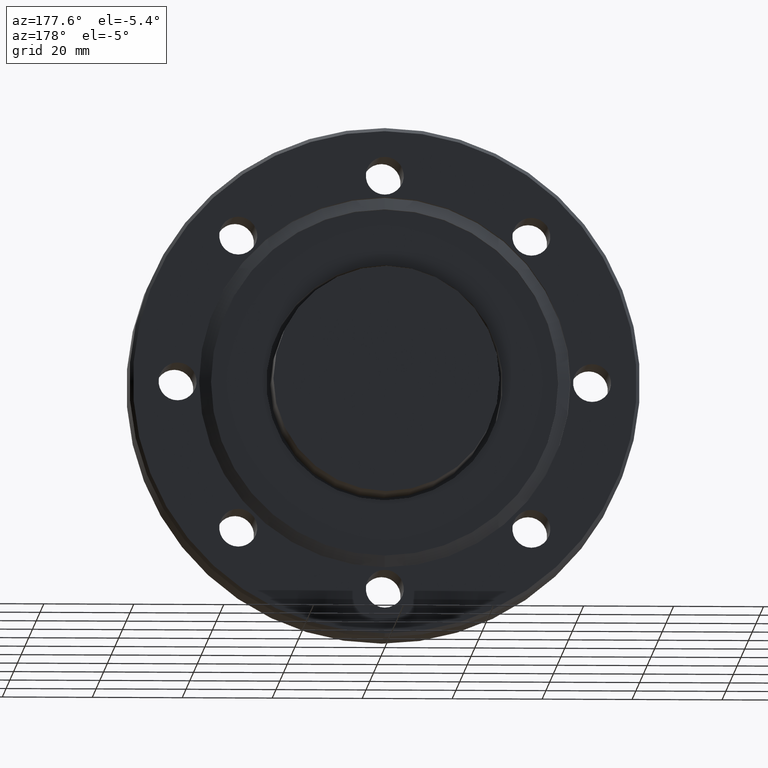
[diagram: clean part render]
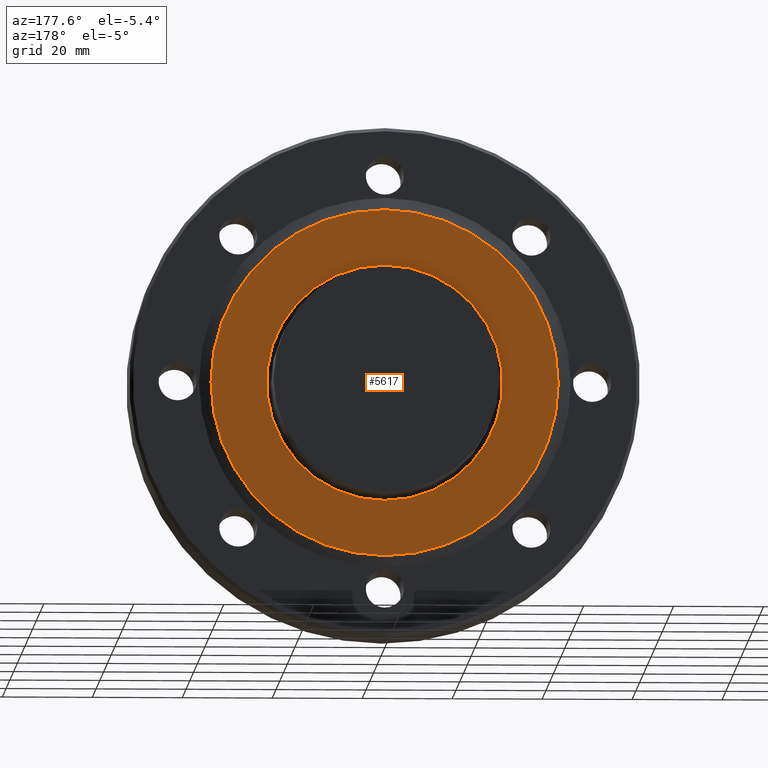
[diagram: same view with one face highlighted and labeled with its STEP entity id]
A machine part, auxiliary view. The second image highlights one B-rep face of the part: STEP entity #5617.
In plain terms, the highlighted planar face has unit normal (0, -1, 0).
Its self-contained STEP definition (entity closure, byte-faithful):
#47 = CARTESIAN_POINT ( 'NONE',  ( -1.520000000000001572, -0.05099999999999994815, 0.0000000000000000000 ) ) ;
#1354 = AXIS2_PLACEMENT_3D ( 'NONE', #4603, #4520, #8682 ) ;
#1559 = FACE_OUTER_BOUND ( 'NONE', #1655, .T. ) ;
#1655 = EDGE_LOOP ( 'NONE', ( #6616, #6618 ) ) ;
#2469 = AXIS2_PLACEMENT_3D ( 'NONE', #6274, #2867, #4859 ) ;
#2579 = VERTEX_POINT ( 'NONE', #8360 ) ;
#2614 = EDGE_CURVE ( 'NONE', #2579, #6384, #5538, .T. ) ;
#2695 = CARTESIAN_POINT ( 'NONE',  ( 0.0000000000000000000, -0.05099999999999991346, 0.0000000000000000000 ) ) ;
#2857 = AXIS2_PLACEMENT_3D ( 'NONE', #47, #4907, #4876 ) ;
#2867 = DIRECTION ( 'NONE',  ( 0.0000000000000000000, -1.000000000000000000, 0.0000000000000000000 ) ) ;
#2931 = DIRECTION ( 'NONE',  ( 0.0000000000000000000, -1.000000000000000000, 0.0000000000000000000 ) ) ;
#2967 = DIRECTION ( 'NONE',  ( 0.0000000000000000000, 0.0000000000000000000, 1.000000000000000000 ) ) ;
#3163 = CIRCLE ( 'NONE', #1354, 1.520000000000001794 ) ;
#3421 = ORIENTED_EDGE ( 'NONE', *, *, #8290, .T. ) ;
#3824 = CIRCLE ( 'NONE', #6853, 1.520000000000001794 ) ;
#3916 = CARTESIAN_POINT ( 'NONE',  ( -1.861463134703977190E-16, -0.05099999999999991346, -1.520000000000000240 ) ) ;
#4520 = DIRECTION ( 'NONE',  ( 0.0000000000000000000, -1.000000000000000000, 0.0000000000000000000 ) ) ;
#4532 = VERTEX_POINT ( 'NONE', #8057 ) ;
#4556 = CIRCLE ( 'NONE', #2469, 1.033500000000001195 ) ;
#4603 = CARTESIAN_POINT ( 'NONE',  ( 0.0000000000000000000, -0.05099999999999991346, 0.0000000000000000000 ) ) ;
#4814 = DIRECTION ( 'NONE',  ( 0.0000000000000000000, -1.000000000000000000, 0.0000000000000000000 ) ) ;
#4859 = DIRECTION ( 'NONE',  ( 0.0000000000000000000, 0.0000000000000000000, 1.000000000000000000 ) ) ;
#4876 = DIRECTION ( 'NONE',  ( 0.0000000000000000000, 0.0000000000000000000, 1.000000000000000000 ) ) ;
#4907 = DIRECTION ( 'NONE',  ( 0.0000000000000000000, -1.000000000000000000, 0.0000000000000000000 ) ) ;
#5538 = CIRCLE ( 'NONE', #5685, 1.033500000000001195 ) ;
#5617 = ADVANCED_FACE ( 'NONE', ( #1559, #7291 ), #6257, .F. ) ;
#5623 = EDGE_CURVE ( 'NONE', #4532, #5990, #3824, .T. ) ;
#5685 = AXIS2_PLACEMENT_3D ( 'NONE', #8494, #2931, #2967 ) ;
#5970 = CARTESIAN_POINT ( 'NONE',  ( -1.265672466918789880E-16, -0.05099999999999998285, -1.033500000000000085 ) ) ;
#5990 = VERTEX_POINT ( 'NONE', #3916 ) ;
#6257 = PLANE ( 'NONE',  #2857 ) ;
#6274 = CARTESIAN_POINT ( 'NONE',  ( 0.0000000000000000000, -0.05099999999999998285, 0.0000000000000000000 ) ) ;
#6372 = EDGE_CURVE ( 'NONE', #5990, #4532, #3163, .T. ) ;
#6384 = VERTEX_POINT ( 'NONE', #5970 ) ;
#6616 = ORIENTED_EDGE ( 'NONE', *, *, #5623, .F. ) ;
#6618 = ORIENTED_EDGE ( 'NONE', *, *, #6372, .F. ) ;
#6697 = ORIENTED_EDGE ( 'NONE', *, *, #2614, .T. ) ;
#6853 = AXIS2_PLACEMENT_3D ( 'NONE', #2695, #4814, #7545 ) ;
#7288 = EDGE_LOOP ( 'NONE', ( #6697, #3421 ) ) ;
#7291 = FACE_BOUND ( 'NONE', #7288, .T. ) ;
#7545 = DIRECTION ( 'NONE',  ( 0.0000000000000000000, 0.0000000000000000000, 1.000000000000000000 ) ) ;
#8057 = CARTESIAN_POINT ( 'NONE',  ( 0.0000000000000000000, -0.05099999999999991346, 1.520000000000001794 ) ) ;
#8290 = EDGE_CURVE ( 'NONE', #6384, #2579, #4556, .T. ) ;
#8360 = CARTESIAN_POINT ( 'NONE',  ( 0.0000000000000000000, -0.05099999999999998285, 1.033500000000001195 ) ) ;
#8494 = CARTESIAN_POINT ( 'NONE',  ( 0.0000000000000000000, -0.05099999999999998285, 0.0000000000000000000 ) ) ;
#8682 = DIRECTION ( 'NONE',  ( 0.0000000000000000000, 0.0000000000000000000, 1.000000000000000000 ) ) ;